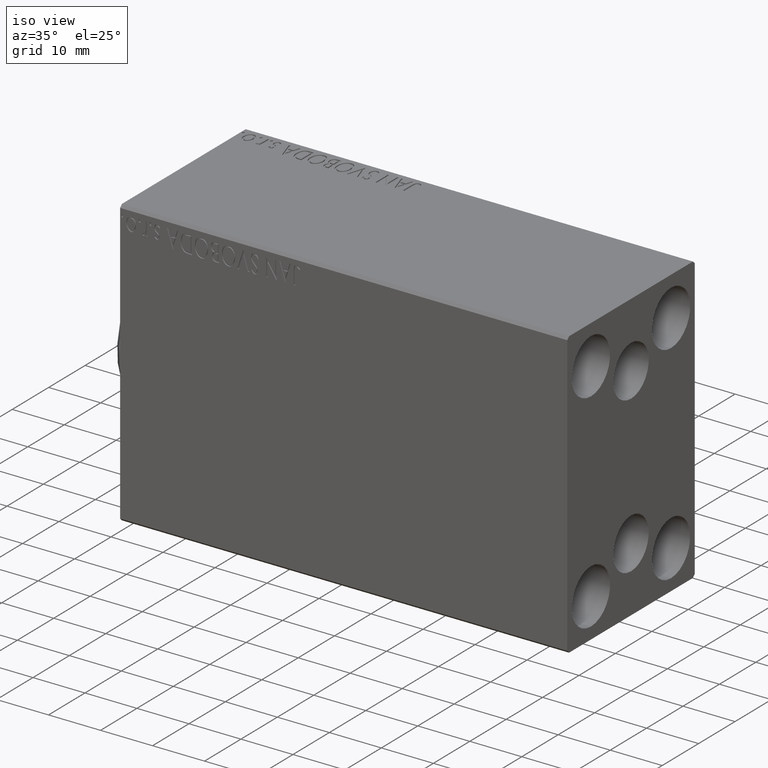
[diagram: clean part render]
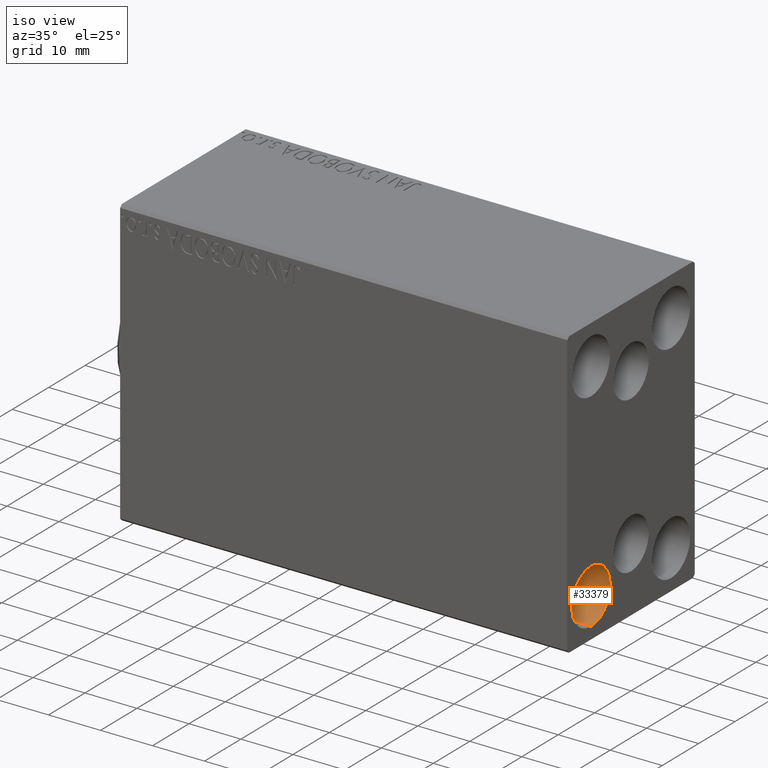
[diagram: same view with one face highlighted and labeled with its STEP entity id]
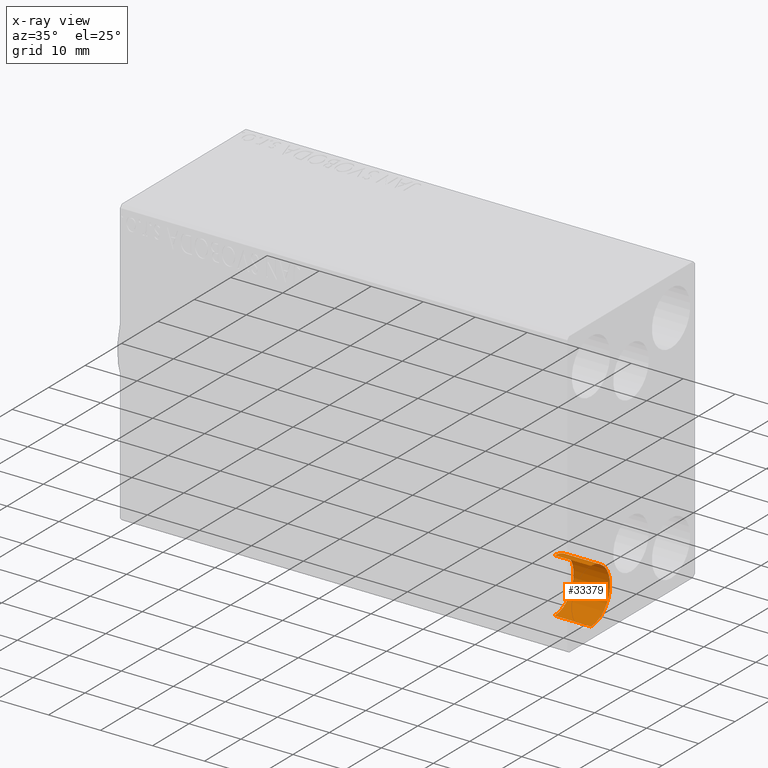
[diagram: x-ray of the same camera — body ghosted, the highlighted face saturated]
A machine part, iso view. The second image highlights one B-rep face of the part: STEP entity #33379.
The next image is the same camera in x-ray: the body ghosted, the highlighted face saturated — about 2% of this face is hidden behind the body in this view.
In plain terms, the highlighted cylindrical surface (edge-blend (fillet) strip) has radius 5.25 mm, axis along (1, 0, 0).
Its self-contained STEP definition (entity closure, byte-faithful):
#3 = CYLINDRICAL_SURFACE ( 'NONE', #20496, 5.250000000000000888 ) ;
#884 = CARTESIAN_POINT ( 'NONE',  ( 78.99999999999998579, -11.00000000000000355, -20.00000000000000000 ) ) ;
#2352 = LINE ( 'NONE', #19238, #7700 ) ;
#2798 = DIRECTION ( 'NONE',  ( 1.000000000000000000, -0.000000000000000000, -0.000000000000000000 ) ) ;
#3561 = DIRECTION ( 'NONE',  ( 0.000000000000000000, 0.000000000000000000, -1.000000000000000000 ) ) ;
#3686 = LINE ( 'NONE', #3904, #23980 ) ;
#3904 = CARTESIAN_POINT ( 'NONE',  ( 78.99999999999998579, -11.00000000000000355, -25.25000000000000000 ) ) ;
#4649 = CIRCLE ( 'NONE', #35133, 5.250000000000000888 ) ;
#7700 = VECTOR ( 'NONE', #2798, 1000.000000000000000 ) ;
#8409 = ORIENTED_EDGE ( 'NONE', *, *, #12294, .T. ) ;
#10476 = CARTESIAN_POINT ( 'NONE',  ( 78.99999999999998579, -11.00000000000000355, -20.00000000000000000 ) ) ;
#12294 = EDGE_CURVE ( 'NONE', #42722, #30116, #34920, .T. ) ;
#13469 = ORIENTED_EDGE ( 'NONE', *, *, #33694, .F. ) ;
#14038 = DIRECTION ( 'NONE',  ( -1.000000000000000000, -0.000000000000000000, -0.000000000000000000 ) ) ;
#15163 = ORIENTED_EDGE ( 'NONE', *, *, #24737, .F. ) ;
#18751 = CARTESIAN_POINT ( 'NONE',  ( 78.99999999999998579, -11.00000000000000355, -14.75000000000000000 ) ) ;
#19238 = CARTESIAN_POINT ( 'NONE',  ( 78.99999999999998579, -11.00000000000000355, -14.75000000000000000 ) ) ;
#20496 = AXIS2_PLACEMENT_3D ( 'NONE', #884, #41274, #3561 ) ;
#21466 = AXIS2_PLACEMENT_3D ( 'NONE', #10476, #14038, #37090 ) ;
#23980 = VECTOR ( 'NONE', #34749, 1000.000000000000000 ) ;
#24280 = DIRECTION ( 'NONE',  ( 0.000000000000000000, 0.000000000000000000, 1.000000000000000000 ) ) ;
#24364 = VERTEX_POINT ( 'NONE', #31403 ) ;
#24718 = DIRECTION ( 'NONE',  ( -1.000000000000000000, -0.000000000000000000, -0.000000000000000000 ) ) ;
#24737 = EDGE_CURVE ( 'NONE', #24364, #37861, #4649, .T. ) ;
#27947 = ORIENTED_EDGE ( 'NONE', *, *, #31800, .T. ) ;
#30116 = VERTEX_POINT ( 'NONE', #37352 ) ;
#31403 = CARTESIAN_POINT ( 'NONE',  ( 86.00000000000000000, -11.00000000000000355, -14.75000000000000000 ) ) ;
#31800 = EDGE_CURVE ( 'NONE', #30116, #37861, #3686, .T. ) ;
#33379 = ADVANCED_FACE ( 'NONE', ( #37290 ), #3, .F. ) ;
#33694 = EDGE_CURVE ( 'NONE', #42722, #24364, #2352, .T. ) ;
#34749 = DIRECTION ( 'NONE',  ( 1.000000000000000000, -0.000000000000000000, -0.000000000000000000 ) ) ;
#34920 = CIRCLE ( 'NONE', #21466, 5.250000000000000888 ) ;
#35133 = AXIS2_PLACEMENT_3D ( 'NONE', #41764, #24718, #24280 ) ;
#37090 = DIRECTION ( 'NONE',  ( 0.000000000000000000, 0.000000000000000000, 1.000000000000000000 ) ) ;
#37290 = FACE_OUTER_BOUND ( 'NONE', #37955, .T. ) ;
#37352 = CARTESIAN_POINT ( 'NONE',  ( 78.99999999999998579, -11.00000000000000355, -25.25000000000000000 ) ) ;
#37861 = VERTEX_POINT ( 'NONE', #43713 ) ;
#37955 = EDGE_LOOP ( 'NONE', ( #13469, #8409, #27947, #15163 ) ) ;
#41274 = DIRECTION ( 'NONE',  ( 1.000000000000000000, -0.000000000000000000, -0.000000000000000000 ) ) ;
#41764 = CARTESIAN_POINT ( 'NONE',  ( 86.00000000000000000, -11.00000000000000355, -20.00000000000000000 ) ) ;
#42722 = VERTEX_POINT ( 'NONE', #18751 ) ;
#43713 = CARTESIAN_POINT ( 'NONE',  ( 86.00000000000000000, -11.00000000000000355, -25.25000000000000000 ) ) ;